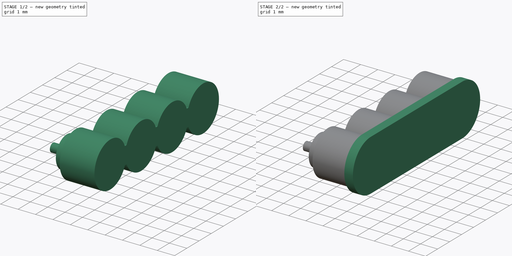
[diagram: build sequence overview — one tinted view per stage of 2, left to right]
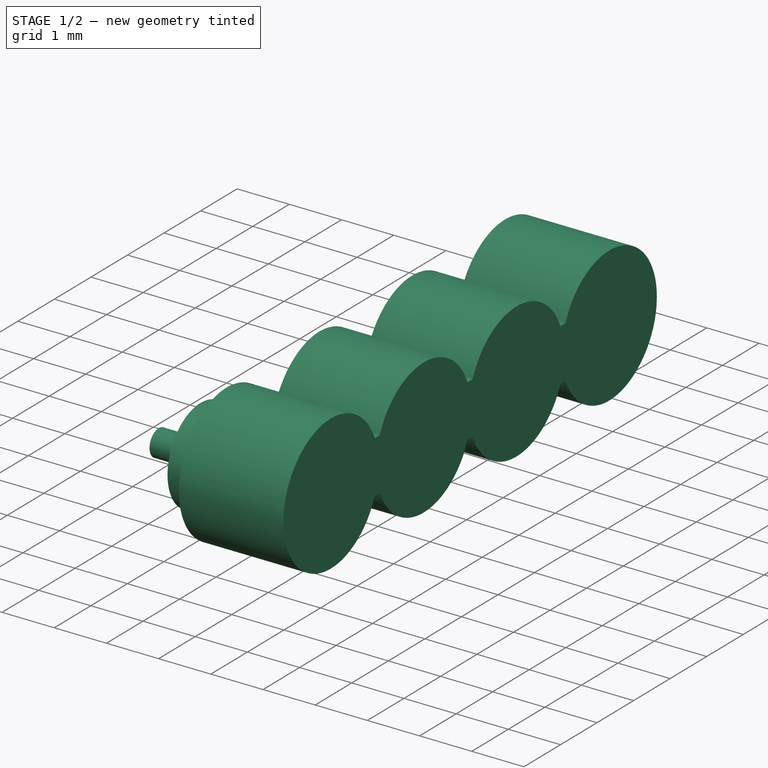
[diagram: stage 1 of 2 — iso view after this stage's code; geometry added in this stage tinted green]
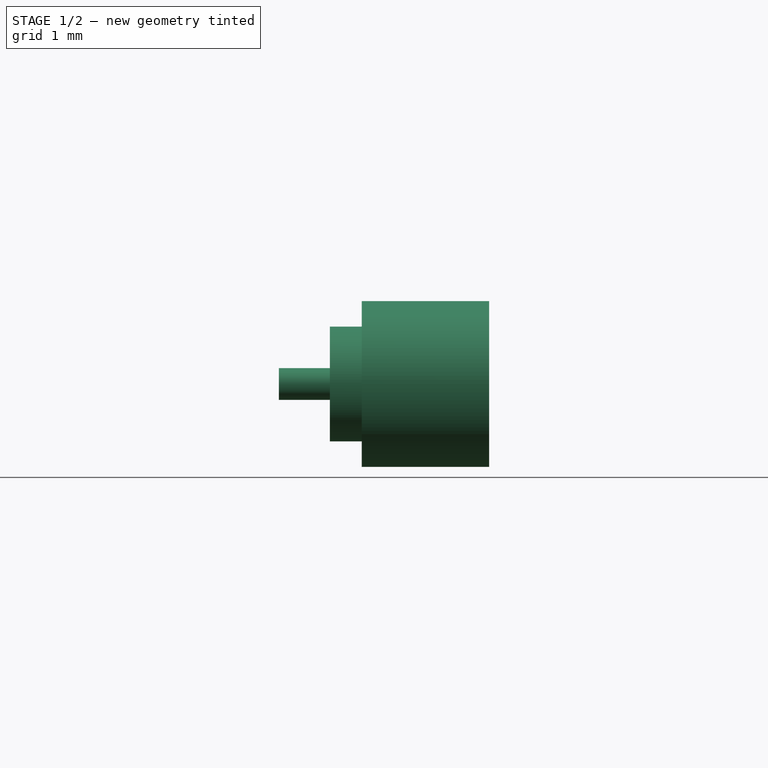
[diagram: stage 1 of 2 — front view after this stage's code; geometry added in this stage tinted green]
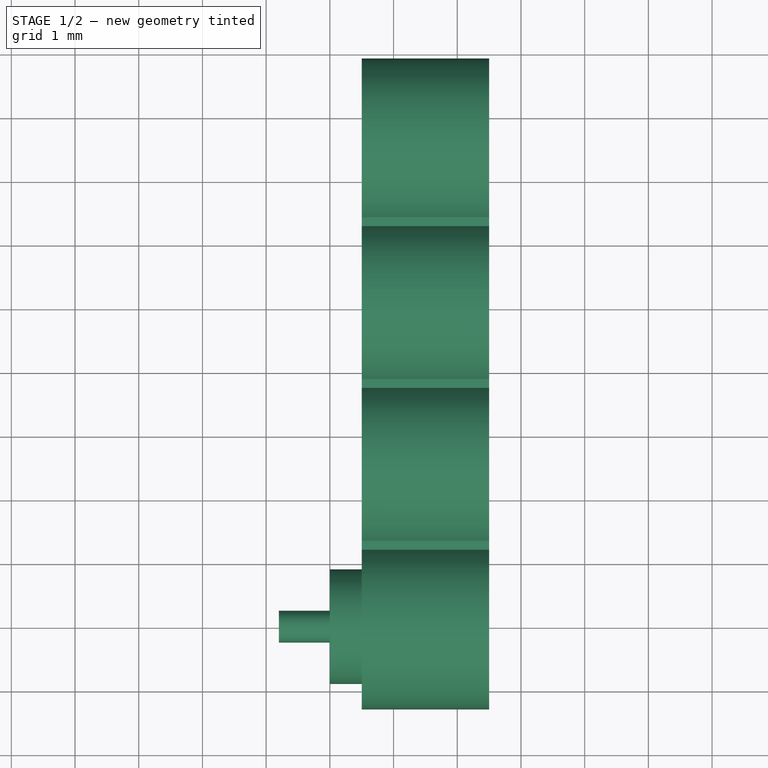
[diagram: stage 1 of 2 — top view after this stage's code; geometry added in this stage tinted green]
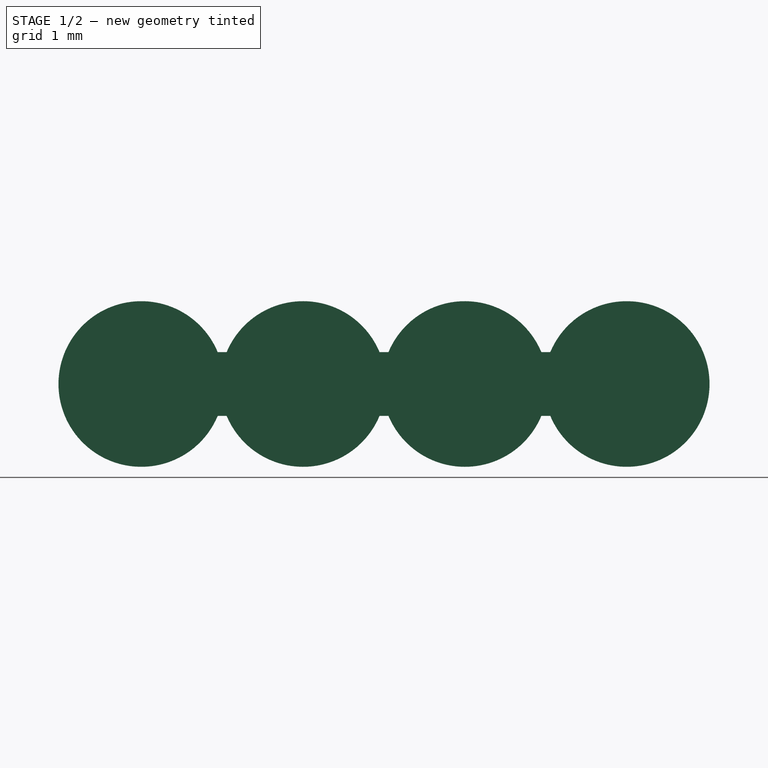
[diagram: stage 1 of 2 — right view after this stage's code; geometry added in this stage tinted green]
FCSTD DOCUMENT  (FreeCAD 1.0R38641 +468 (Git))
Label: SMT-CONN-POGO
License: All rights reserved
LicenseURL: http://en.wikipedia.org/wiki/All_rights_reserved
objects: TechDraw::DrawViewDimension×5, Sketcher::SketchObject×4, PartDesign::Body×2, PartDesign::Pad×2, PartDesign::Revolution×1, TechDraw::DrawSVGTemplate×1, TechDraw::DrawViewAnnotation×1, TechDraw::DrawProjGroupItem×1, TechDraw::DrawProjGroup×1, TechDraw::DrawViewPart×1, PartDesign::Hole×1, TechDraw::DrawPage×1
note: 22 computed .brp shape members not serialized (recipe doc carries the construction recipe); baked Part::Feature solids carry a one-line shape summary decoded from their .brp

FEATURE [Sketcher::SketchObject] Sketch
  ArcFitTolerance = 0
  AttachmentSupport = -> [XZ_Plane001]
  FullyConstrained = true
  MakeInternals = false
  MapMode = 5
  Placement = pos=(0,0,0) rot=(0,0.707107,0.707107;3.14159rad)
  sketch-geometry (10):
    g0: LineSegment StartX=-1.85 StartY=0.9 StartZ=0 EndX=0 EndY=0.9 EndZ=0
    g1: LineSegment StartX=-1.9 StartY=0.6 StartZ=0 EndX=-1.95 EndY=0.6 EndZ=0
    g2: LineSegment StartX=0 StartY=0.9 StartZ=0 EndX=0 EndY=0.25 EndZ=0
    g3: LineSegment StartX=-1.9 StartY=0.6 StartZ=0 EndX=-1.9 EndY=0.85 EndZ=0
    g4: ArcOfCircle CenterX=-1.85 CenterY=0.85 CenterZ=0 NormalX=0 NormalY=0 NormalZ=1 AngleXU=0 Radius=0.05 StartAngle=1.5708 EndAngle=3.14159
    g5: LineSegment StartX=-2.4 StartY=0 StartZ=0 EndX=-2.4 EndY=0.15 EndZ=0
    g6: ArcOfCircle CenterX=-1.95 CenterY=0.15 CenterZ=0 NormalX=0 NormalY=0 NormalZ=1 AngleXU=0 Radius=0.45 StartAngle=1.5708 EndAngle=3.14159
    g7: LineSegment StartX=-2.4 StartY=0 StartZ=0 EndX=0.8 EndY=0 EndZ=0
    g8: LineSegment StartX=0.8 StartY=0 StartZ=0 EndX=0.8 EndY=0.25 EndZ=0
    g9: LineSegment StartX=0.8 StartY=0.25 StartZ=0 EndX=0 EndY=0.25 EndZ=0
  constraints (28):
    c: Horizontal(g0)
    c: Horizontal(g1)
    c: Coincident(g2,g0)
    c: Vertical(g2)
    c: DistanceX(g5,g1) = 0.5
    c: DistanceX(g5,g-1) = 2.4
    c: Vertical(g3)
    c: Tangent(g3,g4) = 1.5708
    c: Tangent(g0,g4) = 1.5708
    c: Radius(g4) = 0.05
    c: DistanceY(g-1,g0) = 0.9
    c: Vertical(g5)
    c: Tangent(g5,g6) = 1.5708
    c: Tangent(g6,g1) = -1.5708
    c: Coincident(g1,g3)
    c: DistanceY(g1,g0) = 0.3
    c: Radius(g6) = 0.45
    c: PointOnObject(g2,g-2)
    c: Coincident(g5,g7)
    c: Coincident(g7,g8)
    c: Vertical(g8)
    c: Coincident(g8,g9)
    c: Coincident(g9,g2)
    c: Horizontal(g9)
    c: PointOnObject(g7,g-1)
    c: DistanceX(g9,g9) = 0.8
    c: DistanceY(g8,g8) = 0.25
    c: PointOnObject(g5,g-1)
FEATURE [PartDesign::Revolution] Revolution
  AllowMultiFace = false
  Angle = 360
  Angle2 = 60
  Axis = (-1,0,0)
  Base = (0,0,0)
  Placement = pos=(0,0,0) rot=(1,0,0;1.5708rad)
  Profile = -> Sketch
  ReferenceAxis = -> Sketch [H_Axis]
  Suppressed = false
  Type = 0
FEATURE [TechDraw::DrawSVGTemplate] Template
  EditableTexts = Designed_by_Name=Suku Wc; Drawing_number=1/1; FC-Date=2023.08.21.; FC-SC=20:1; FC-SH=1/1; FC-Title=IS_POGO_D18x24_THT; Subtitle=All dimensions are in millimeters (mm); Weight=N/A
  Height = 210
  Orientation = 1
  Width = 297
FEATURE [TechDraw::DrawViewAnnotation] Annotation
  Font = osifont
  LineSpace = 80
  LockPosition = false
  MaxWidth = -1
  Rotation = 0
  Scale = 20
  ScaleType = 0
  Text = Materials: | Plunger:	Brass 0.125um Au over Ni | Barrel: 	Brass 0.125um Au over Ni | Spring:	SUS surface treatment | Mechanical: | Working stroke:	0.3mm | Contact force:	20g ± 10g @0.3mm full stroke | Life test:	20000 cycles | Electrical: | Rated voltage:	5V | Rated current:	1.5A | Contact resistance: max. 50 mOhm | Other: | ROHS Compliant!
  TextSize = 4
  TextStyle = 0
  X = 66.2234
  Y = 111.89
FEATURE [PartDesign::Body] RevolutionBody  label="SMT-CONN-POGO"
  AllowCompound = false
  Group = -> [Sketch,Revolution]
  Origin = -> Origin001
  Tip = -> Revolution
FEATURE [TechDraw::DrawProjGroupItem] ProjItem  label="Front"
  CoarseView = false
  Direction = (0,-1,0)
  Focus = 100
  HardHidden = false
  IsoCount = 0
  IsoHidden = false
  IsoVisible = false
  LockPosition = true
  Perspective = false
  Rotation = 0
  RotationVector = (1,0,0)
  Scale = 20
  ScaleType = 2
  ScrubCount = 0
  SeamHidden = false
  SeamVisible = false
  SmoothHidden = false
  SmoothVisible = false
  Source = -> [RevolutionBody]
  Type = 0
  X = 0
  XDirection = (1,0,0)
  Y = 0
FEATURE [TechDraw::DrawProjGroup] ProjGroup
  Anchor = -> ProjItem
  AutoDistribute = true
  LockPosition = false
  ProjectionType = 0
  Rotation = 0
  Scale = 20
  ScaleType = 0
  Source = -> [RevolutionBody]
  Views = -> [ProjItem]
  X = 165.37
  Y = 98.0224
  spacingX = 15
  spacingY = 15
FEATURE [TechDraw::DrawViewPart] View
  CoarseView = false
  Direction = (-0.458,-0.852,-0.254)
  Focus = 100
  HardHidden = false
  IsoCount = 0
  IsoHidden = false
  IsoVisible = false
  LockPosition = false
  Perspective = false
  Rotation = 0
  Scale = 20
  ScaleType = 0
  ScrubCount = 0
  SeamHidden = false
  SeamVisible = false
  SmoothHidden = false
  SmoothVisible = false
  Source = -> [RevolutionBody]
  X = 239.124
  XDirection = (0.880803,-0.473483,0)
  Y = 163.618
FEATURE [TechDraw::DrawViewDimension] Dimension010
  AngleOverride = false
  Arbitrary = false
  ArbitraryTolerances = false
  EqualTolerance = true
  ExtensionAngle = 0
  FormatSpec = %.2w
  FormatSpecOverTolerance = %+.2w
  FormatSpecUnderTolerance = %+.2w
  Inverted = false
  LineAngle = 0
  LockPosition = false
  MeasureType = 1
  OverTolerance = 0
  References2D = -> [ProjItem]
  Rotation = 0
  Scale = 20
  ScaleType = 0
  TheoreticalExact = false
  Type = 1
  UnderTolerance = 0
  X = 1.89876
  Y = 32.4497
FEATURE [Sketcher::SketchObject] Sketch001
  ArcFitTolerance = 0
  AttachmentOffset = pos=(0,0,0.5) rot=(0,0,1;0rad)
  AttachmentSupport = -> [YZ_Plane002]
  FullyConstrained = true
  MakeInternals = false
  MapMode = 5
  Placement = pos=(0.5,0,0) rot=(0.57735,0.57735,0.57735;2.0944rad)
  sketch-geometry (22):
    g0: ArcOfCircle CenterX=0 CenterY=0 CenterZ=0 NormalX=0 NormalY=0 NormalZ=1 AngleXU=0 Radius=1.3 StartAngle=0.394791 EndAngle=5.88839
    g1: LineSegment [constr] StartX=1.2 StartY=0.5 StartZ=0 EndX=1.2 EndY=-0.5 EndZ=0
    g2: ArcOfCircle CenterX=2.54 CenterY=0 CenterZ=0 NormalX=0 NormalY=0 NormalZ=1 AngleXU=0 Radius=1.3 StartAngle=0.394791 EndAngle=2.7468
    g3: ArcOfCircle CenterX=5.08 CenterY=0 CenterZ=0 NormalX=0 NormalY=0 NormalZ=1 AngleXU=0 Radius=1.3 StartAngle=0.394791 EndAngle=2.7468
    g4: ArcOfCircle CenterX=7.62 CenterY=0 CenterZ=0 NormalX=0 NormalY=0 NormalZ=1 AngleXU=0 Radius=1.3 StartAngle=3.53638 EndAngle=9.02999
    g5: ArcOfCircle CenterX=2.54 CenterY=0 CenterZ=0 NormalX=0 NormalY=0 NormalZ=1 AngleXU=0 Radius=1.3 StartAngle=3.53638 EndAngle=5.88839
    g6: ArcOfCircle CenterX=5.08 CenterY=0 CenterZ=0 NormalX=0 NormalY=0 NormalZ=1 AngleXU=0 Radius=1.3 StartAngle=3.53638 EndAngle=5.88839
    g7: LineSegment StartX=1.2 StartY=0.5 StartZ=0 EndX=1.34 EndY=0.5 EndZ=0
    g8: LineSegment StartX=1.2 StartY=-0.5 StartZ=0 EndX=1.34 EndY=-0.5 EndZ=0
    g9: LineSegment [constr] StartX=1.34 StartY=-0.5 StartZ=0 EndX=1.34 EndY=0.5 EndZ=0
    g10: LineSegment StartX=3.74 StartY=0.5 StartZ=0 EndX=3.88 EndY=0.5 EndZ=0
    g11: LineSegment [constr] StartX=3.74 StartY=0.5 StartZ=0 EndX=3.74 EndY=-0.5 EndZ=0
    g12: LineSegment StartX=3.74 StartY=-0.5 StartZ=0 EndX=3.88 EndY=-0.5 EndZ=0
    g13: LineSegment [constr] StartX=3.88 StartY=-0.5 StartZ=0 EndX=3.88 EndY=0.5 EndZ=0
    g14: LineSegment [constr] StartX=6.28 StartY=-0.5 StartZ=0 EndX=6.28 EndY=0.5 EndZ=0
    g15: LineSegment StartX=6.28 StartY=0.5 StartZ=0 EndX=6.42 EndY=0.5 EndZ=0
    g16: LineSegment [constr] StartX=6.42 StartY=0.5 StartZ=0 EndX=6.42 EndY=-0.5 EndZ=0
    g17: LineSegment StartX=6.42 StartY=-0.5 StartZ=0 EndX=6.28 EndY=-0.5 EndZ=0
    g18: Circle [constr] CenterX=0 CenterY=0 CenterZ=0 NormalX=0 NormalY=0 NormalZ=1 AngleXU=0 Radius=0.9
    g19: Circle [constr] CenterX=2.54 CenterY=0 CenterZ=0 NormalX=0 NormalY=0 NormalZ=1 AngleXU=0 Radius=0.9
    g20: Circle [constr] CenterX=5.08 CenterY=0 CenterZ=0 NormalX=0 NormalY=0 NormalZ=1 AngleXU=0 Radius=0.9
    g21: Circle [constr] CenterX=7.62 CenterY=0 CenterZ=0 NormalX=0 NormalY=0 NormalZ=1 AngleXU=0 Radius=0.9
  constraints (59):
    c: Coincident(g1,g0)
    c: Coincident(g1,g0)
    c: Vertical(g1)
    c: Coincident(g0,g-1)
    c: Diameter(g0) = 2.6
    c: PointOnObject(g2,g-1)
    c: PointOnObject(g3,g-1)
    c: PointOnObject(g4,g-1)
    c: Coincident(g5,g2)
    c: Coincident(g6,g3)
    c: Coincident(g7,g0)
    c: Coincident(g7,g2)
    c: Coincident(g8,g0)
    c: Coincident(g8,g5)
    c: Coincident(g9,g5)
    c: Vertical(g9)
    c: Coincident(g9,g2)
    c: Horizontal(g7)
    c: Horizontal(g8)
    c: DistanceX(g0,g2) = 2.54
    c: Equal(g2,g0)
    c: Coincident(g10,g2)
    c: Coincident(g10,g3)
    c: Coincident(g11,g2)
    c: Coincident(g11,g5)
    c: Vertical(g11)
    c: Coincident(g12,g5)
    c: Coincident(g12,g6)
    c: Coincident(g13,g6)
    c: Coincident(g13,g3)
    c: Horizontal(g10)
    c: Horizontal(g12)
    c: Vertical(g13)
    c: Equal(g11,g9)
    c: Equal(g10,g7)
    c: Coincident(g14,g6)
    c: Coincident(g14,g3)
    c: Coincident(g15,g3)
    c: Coincident(g15,g4)
    c: Coincident(g16,g4)
    c: Coincident(g16,g4)
    c: Coincident(g17,g4)
    c: Coincident(g17,g6)
    c: Vertical(g14)
    c: Horizontal(g15)
    c: Horizontal(g17)
    c: Equal(g14,g13)
    c: Equal(g10,g15)
    c: DistanceY(g1,g1) = 1
    c: Equal(g3,g4)
    c: Equal(g4,g2)
    c: Coincident(g18,g0)
    c: Coincident(g19,g2)
    c: Coincident(g20,g3)
    c: Coincident(g21,g4)
    c: Equal(g18,g19)
    c: Equal(g19,g20)
    c: Equal(g20,g21)
    c: Diameter(g18) = 1.8
FEATURE [PartDesign::Pad] Pad
  Direction = (1,0,0)
  Length = 2
  Length2 = 10
  Placement = pos=(0,0,0) rot=(0.57735,0.57735,0.57735;2.0944rad)
  Profile = -> Sketch001
  ReferenceAxis = -> Sketch001 [N_Axis]
  Suppressed = false
  Type = 0
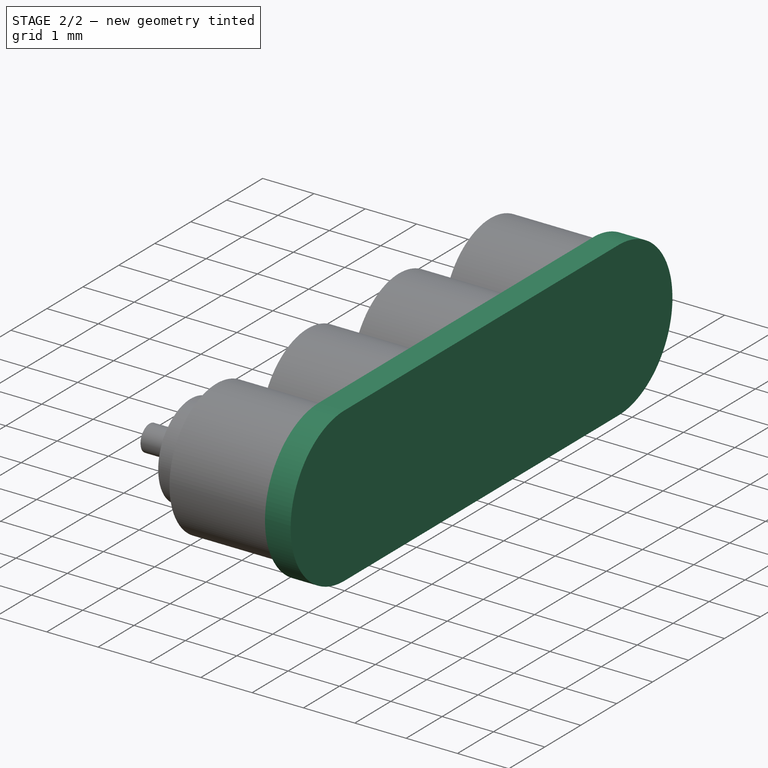
[diagram: stage 2 of 2 — iso view after this stage's code; geometry added in this stage tinted green]
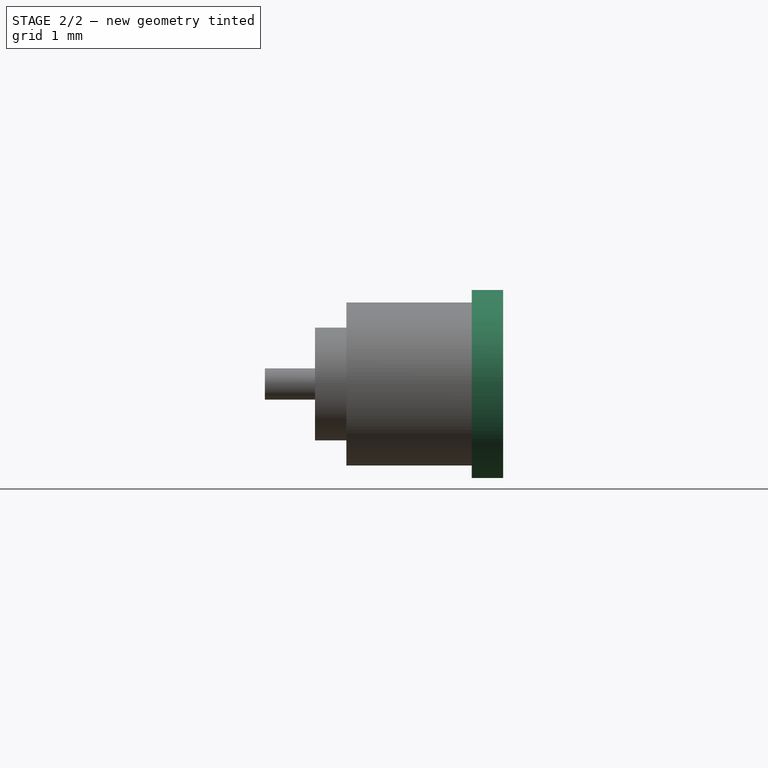
[diagram: stage 2 of 2 — front view after this stage's code; geometry added in this stage tinted green]
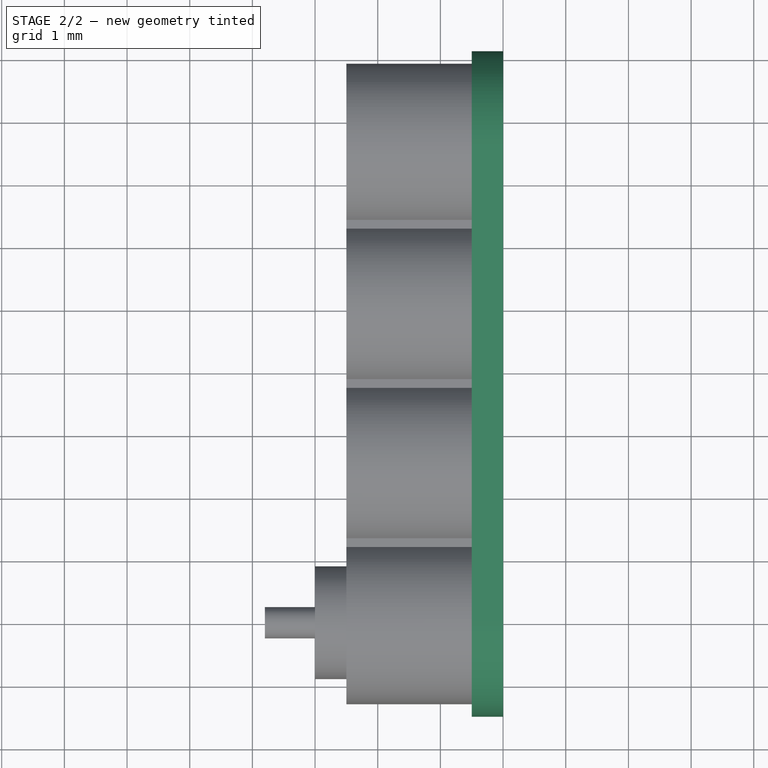
[diagram: stage 2 of 2 — top view after this stage's code; geometry added in this stage tinted green]
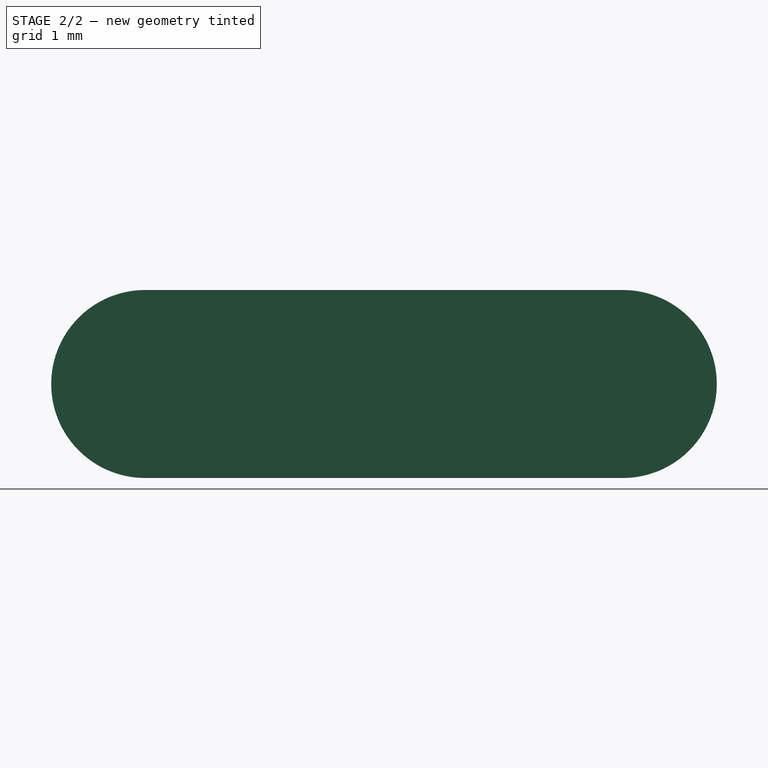
[diagram: stage 2 of 2 — right view after this stage's code; geometry added in this stage tinted green]
FEATURE [Sketcher::SketchObject] Sketch002
  ArcFitTolerance = 0
  AttachmentOffset = pos=(0,0,2.5) rot=(0,0,1;0rad)
  AttachmentSupport = -> [YZ_Plane002]
  FullyConstrained = true
  MakeInternals = false
  MapMode = 5
  Placement = pos=(2.5,0,0) rot=(0.57735,0.57735,0.57735;2.0944rad)
  sketch-geometry (4):
    g0: ArcOfCircle CenterX=0 CenterY=0 CenterZ=0 NormalX=0 NormalY=0 NormalZ=1 AngleXU=0 Radius=1.5 StartAngle=1.5708 EndAngle=4.71239
    g1: ArcOfCircle CenterX=7.62 CenterY=0 CenterZ=0 NormalX=0 NormalY=0 NormalZ=1 AngleXU=0 Radius=1.5 StartAngle=4.71239 EndAngle=7.85398
    g2: LineSegment StartX=-3e-16 StartY=-1.5 StartZ=0 EndX=7.62 EndY=-1.5 EndZ=0
    g3: LineSegment StartX=7.62 StartY=1.5 StartZ=0 EndX=0 EndY=1.5 EndZ=0
  constraints (9):
    c: Tangent(g0,g2) = -1.5708
    c: Tangent(g2,g1) = -1.5708
    c: Tangent(g1,g3) = -1.5708
    c: Tangent(g3,g0) = -1.5708
    c: Equal(g0,g1)
    c: Coincident(g0,g-1)
    c: PointOnObject(g1,g-1)
    c: DistanceX(g3,g3) = 7.62
    c: Diameter(g0) = 3
FEATURE [PartDesign::Pad] Pad001
  BaseFeature = -> Pad
  Direction = (1,0,0)
  Length = 0.5
  Length2 = 10
  Placement = pos=(0,0,0) rot=(0.57735,0.57735,0.57735;2.0944rad)
  Profile = -> Sketch002
  ReferenceAxis = -> Sketch002 [N_Axis]
  Suppressed = false
  Type = 0
FEATURE [Sketcher::SketchObject] Sketch003
  ArcFitTolerance = 0
  AttachmentOffset = pos=(0,0,0.5) rot=(0,0,1;0rad)
  AttachmentSupport = -> [YZ_Plane002]
  FullyConstrained = true
  MakeInternals = false
  MapMode = 5
  Placement = pos=(0.5,0,0) rot=(0.57735,0.57735,0.57735;2.0944rad)
  sketch-geometry (22):
    g0: ArcOfCircle [constr] CenterX=0 CenterY=0 CenterZ=0 NormalX=0 NormalY=0 NormalZ=1 AngleXU=0 Radius=1.3 StartAngle=0.394791 EndAngle=5.88839
    g1: LineSegment [constr] StartX=1.2 StartY=0.5 StartZ=0 EndX=1.2 EndY=-0.5 EndZ=0
    g2: ArcOfCircle [constr] CenterX=2.54 CenterY=0 CenterZ=0 NormalX=0 NormalY=0 NormalZ=1 AngleXU=0 Radius=1.3 StartAngle=0.394791 EndAngle=2.7468
    g3: ArcOfCircle [constr] CenterX=5.08 CenterY=0 CenterZ=0 NormalX=0 NormalY=0 NormalZ=1 AngleXU=0 Radius=1.3 StartAngle=0.394791 EndAngle=2.7468
    g4: ArcOfCircle [constr] CenterX=7.62 CenterY=0 CenterZ=0 NormalX=0 NormalY=0 NormalZ=1 AngleXU=0 Radius=1.3 StartAngle=3.53638 EndAngle=9.02999
    g5: ArcOfCircle [constr] CenterX=2.54 CenterY=0 CenterZ=0 NormalX=0 NormalY=0 NormalZ=1 AngleXU=0 Radius=1.3 StartAngle=3.53638 EndAngle=5.88839
    g6: ArcOfCircle [constr] CenterX=5.08 CenterY=0 CenterZ=0 NormalX=0 NormalY=0 NormalZ=1 AngleXU=0 Radius=1.3 StartAngle=3.53638 EndAngle=5.88839
    g7: LineSegment [constr] StartX=1.2 StartY=0.5 StartZ=0 EndX=1.34 EndY=0.5 EndZ=0
    g8: LineSegment [constr] StartX=1.2 StartY=-0.5 StartZ=0 EndX=1.34 EndY=-0.5 EndZ=0
    g9: LineSegment [constr] StartX=1.34 StartY=-0.5 StartZ=0 EndX=1.34 EndY=0.5 EndZ=0
    g10: LineSegment [constr] StartX=3.74 StartY=0.5 StartZ=0 EndX=3.88 EndY=0.5 EndZ=0
    g11: LineSegment [constr] StartX=3.74 StartY=0.5 StartZ=0 EndX=3.74 EndY=-0.5 EndZ=0
    g12: LineSegment [constr] StartX=3.74 StartY=-0.5 StartZ=0 EndX=3.88 EndY=-0.5 EndZ=0
    g13: LineSegment [constr] StartX=3.88 StartY=-0.5 StartZ=0 EndX=3.88 EndY=0.5 EndZ=0
    g14: LineSegment [constr] StartX=6.28 StartY=-0.5 StartZ=0 EndX=6.28 EndY=0.5 EndZ=0
    g15: LineSegment [constr] StartX=6.28 StartY=0.5 StartZ=0 EndX=6.42 EndY=0.5 EndZ=0
    g16: LineSegment [constr] StartX=6.42 StartY=0.5 StartZ=0 EndX=6.42 EndY=-0.5 EndZ=0
    g17: LineSegment [constr] StartX=6.42 StartY=-0.5 StartZ=0 EndX=6.28 EndY=-0.5 EndZ=0
    g18: Circle CenterX=0 CenterY=0 CenterZ=0 NormalX=0 NormalY=0 NormalZ=1 AngleXU=0 Radius=0.9
    g19: Circle CenterX=2.54 CenterY=0 CenterZ=0 NormalX=0 NormalY=0 NormalZ=1 AngleXU=0 Radius=0.9
    g20: Circle CenterX=5.08 CenterY=0 CenterZ=0 NormalX=0 NormalY=0 NormalZ=1 AngleXU=0 Radius=0.9
    g21: Circle CenterX=7.62 CenterY=0 CenterZ=0 NormalX=0 NormalY=0 NormalZ=1 AngleXU=0 Radius=0.9
  constraints (59):
    c: Coincident(g1,g0)
    c: Coincident(g1,g0)
    c: Vertical(g1)
    c: Coincident(g0,g-1)
    c: Diameter(g0) = 2.6
    c: PointOnObject(g2,g-1)
    c: PointOnObject(g3,g-1)
    c: PointOnObject(g4,g-1)
    c: Coincident(g5,g2)
    c: Coincident(g6,g3)
    c: Coincident(g7,g0)
    c: Coincident(g7,g2)
    c: Coincident(g8,g0)
    c: Coincident(g8,g5)
    c: Coincident(g9,g5)
    c: Vertical(g9)
    c: Coincident(g9,g2)
    c: Horizontal(g7)
    c: Horizontal(g8)
    c: DistanceX(g0,g2) = 2.54
    c: Equal(g2,g0)
    c: Coincident(g10,g2)
    c: Coincident(g10,g3)
    c: Coincident(g11,g2)
    c: Coincident(g11,g5)
    c: Vertical(g11)
    c: Coincident(g12,g5)
    c: Coincident(g12,g6)
    c: Coincident(g13,g6)
    c: Coincident(g13,g3)
    c: Horizontal(g10)
    c: Horizontal(g12)
    c: Vertical(g13)
    c: Equal(g11,g9)
    c: Equal(g10,g7)
    c: Coincident(g14,g6)
    c: Coincident(g14,g3)
    c: Coincident(g15,g3)
    c: Coincident(g15,g4)
    c: Coincident(g16,g4)
    c: Coincident(g16,g4)
    c: Coincident(g17,g4)
    c: Coincident(g17,g6)
    c: Vertical(g14)
    c: Horizontal(g15)
    c: Horizontal(g17)
    c: Equal(g14,g13)
    c: Equal(g10,g15)
    c: DistanceY(g1,g1) = 1
    c: Equal(g3,g4)
    c: Equal(g4,g2)
    c: Coincident(g18,g0)
    c: Coincident(g19,g2)
    c: Coincident(g20,g3)
    c: Coincident(g21,g4)
    c: Equal(g18,g19)
    c: Equal(g19,g20)
    c: Equal(g20,g21)
    c: Diameter(g18) = 1.8
FEATURE [PartDesign::Hole] Hole
  BaseFeature = -> Pad001
  CustomThreadClearance = 0
  Depth = 2
  DepthType = 0
  Diameter = 1.4
  DrillForDepth = false
  DrillPoint = 0
  DrillPointAngle = 118
  HoleCutCountersinkAngle = 90
  HoleCutCustomValues = false
  HoleCutDepth = 1.3
  HoleCutDiameter = 1.8
  HoleCutType = 1
  ModelThread = false
  Placement = pos=(0,0,0) rot=(0.57735,0.57735,0.57735;2.0944rad)
  Profile = -> Sketch003
  Reversed = true
  Suppressed = false
  Tapered = false
  TaperedAngle = 90
  ThreadClass = 0
  ThreadDepth = 2
  ThreadDepthType = 0
  ThreadDirection = 0
  ThreadFit = 0
  ThreadSize = 0
  ThreadType = 0
  Threaded = false
  UseCustomThreadClearance = false
FEATURE [PartDesign::Body] Body  label="SMT-CONN-POGO_Cap"
  AllowCompound = false
  Group = -> [Sketch001,Pad,Sketch002,Pad001,Sketch003,Hole]
  Origin = -> Origin002
  Tip = -> Hole
FEATURE [TechDraw::DrawViewDimension] Dimension
  AngleOverride = false
  Arbitrary = false
  ArbitraryTolerances = false
  EqualTolerance = true
  ExtensionAngle = 0
  FormatSpec = %.2w
  FormatSpecOverTolerance = %+.2w
  FormatSpecUnderTolerance = %+.2w
  Inverted = false
  LineAngle = 0
  LockPosition = false
  MeasureType = 1
  OverTolerance = 0
  References2D = -> [ProjItem]
  Rotation = 0
  Scale = 20
  ScaleType = 0
  TheoreticalExact = false
  Type = 1
  UnderTolerance = 0
  X = 27.7336
  Y = -25.1612
FEATURE [TechDraw::DrawViewDimension] Dimension012
  AngleOverride = false
  Arbitrary = false
  ArbitraryTolerances = false
  EqualTolerance = true
  ExtensionAngle = 0
  FormatSpec = %.2w
  FormatSpecOverTolerance = %+.2w
  FormatSpecUnderTolerance = %+.2w
  Inverted = false
  LineAngle = 0
  LockPosition = false
  MeasureType = 1
  OverTolerance = 0
  References2D = -> [ProjItem]
  Rotation = 0
  Scale = 20
  ScaleType = 0
  TheoreticalExact = false
  Type = 2
  UnderTolerance = 0
  X = -44.0267
  Y = 12.3926
FEATURE [TechDraw::DrawViewDimension] Dimension013
  AngleOverride = false
  Arbitrary = false
  ArbitraryTolerances = false
  EqualTolerance = true
  ExtensionAngle = 0
  FormatSpec = %.2w
  FormatSpecOverTolerance = %+.2w
  FormatSpecUnderTolerance = %+.2w
  Inverted = false
  LineAngle = 0
  LockPosition = false
  MeasureType = 1
  OverTolerance = 0
  References2D = -> [ProjItem]
  Rotation = 0
  Scale = 20
  ScaleType = 0
  TheoreticalExact = false
  Type = 1
  UnderTolerance = 0
  X = -25.787
  Y = -25.1281
FEATURE [TechDraw::DrawViewDimension] Dimension014
  AngleOverride = false
  Arbitrary = false
  ArbitraryTolerances = false
  EqualTolerance = true
  ExtensionAngle = 0
  FormatSpec = %.2w
  FormatSpecOverTolerance = %+.2w
  FormatSpecUnderTolerance = %+.2w
  Inverted = false
  LineAngle = 0
  LockPosition = false
  MeasureType = 1
  OverTolerance = 0
  References2D = -> [ProjItem]
  Rotation = 0
  Scale = 20
  ScaleType = 0
  TheoreticalExact = false
  Type = 2
  UnderTolerance = 0
  X = -53.2416
  Y = 26.4504
FEATURE [TechDraw::DrawPage] Page001  label="SMT-CONN-POGO_Drawing"
  KeepUpdated = true
  NextBalloonIndex = 1
  ProjectionType = 0
  Scale = 20
  Template = -> Template
  Views = -> [ProjGroup,Annotation,View,Dimension010,Dimension,Dimension012,Dimension013,Dimension014]
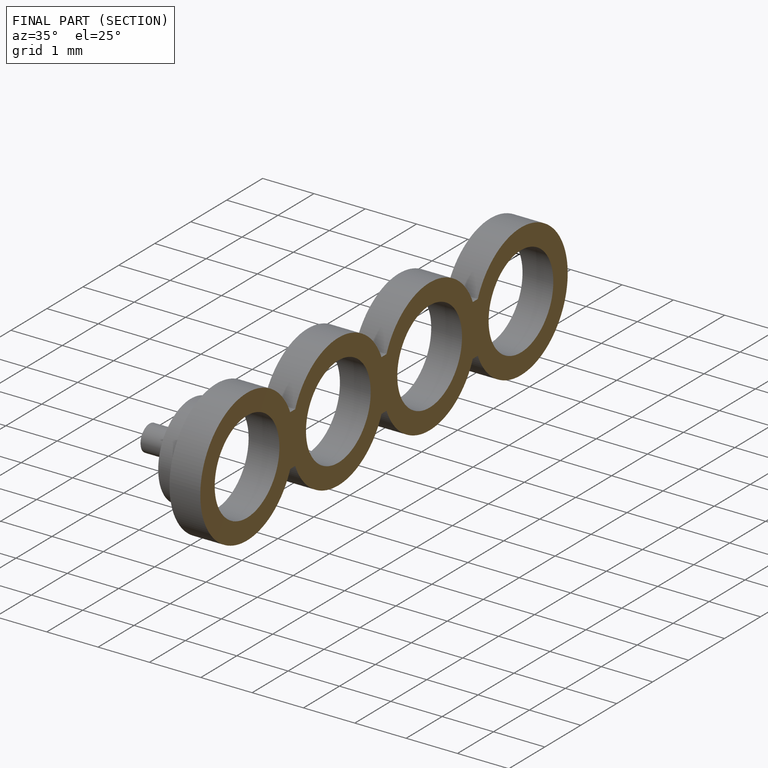
[diagram: finished part — half-section view (interior)]
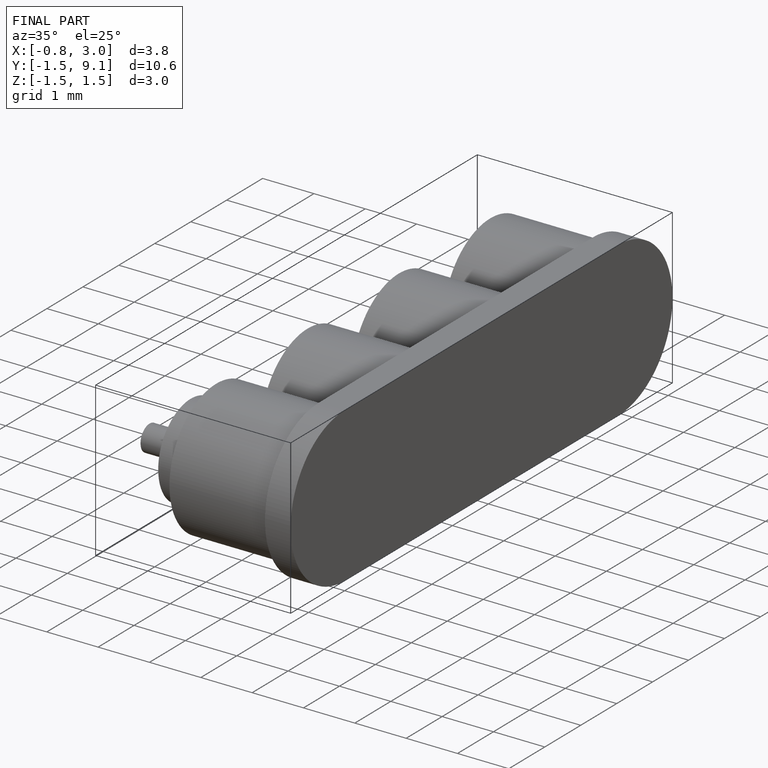
[diagram: finished part — iso view with bounding-box wireframe]
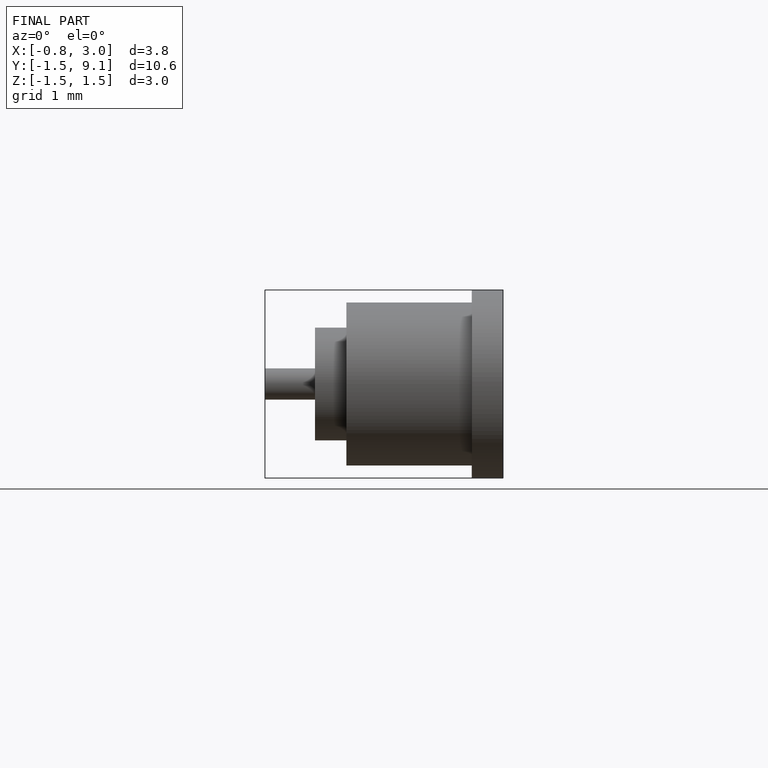
[diagram: finished part — front view with bounding-box wireframe]
